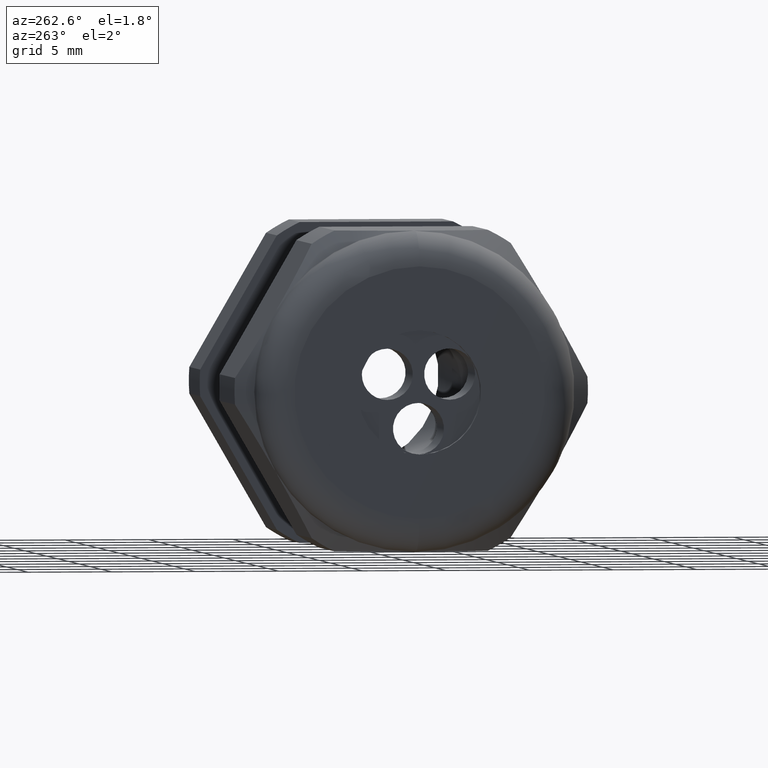
[diagram: clean part render]
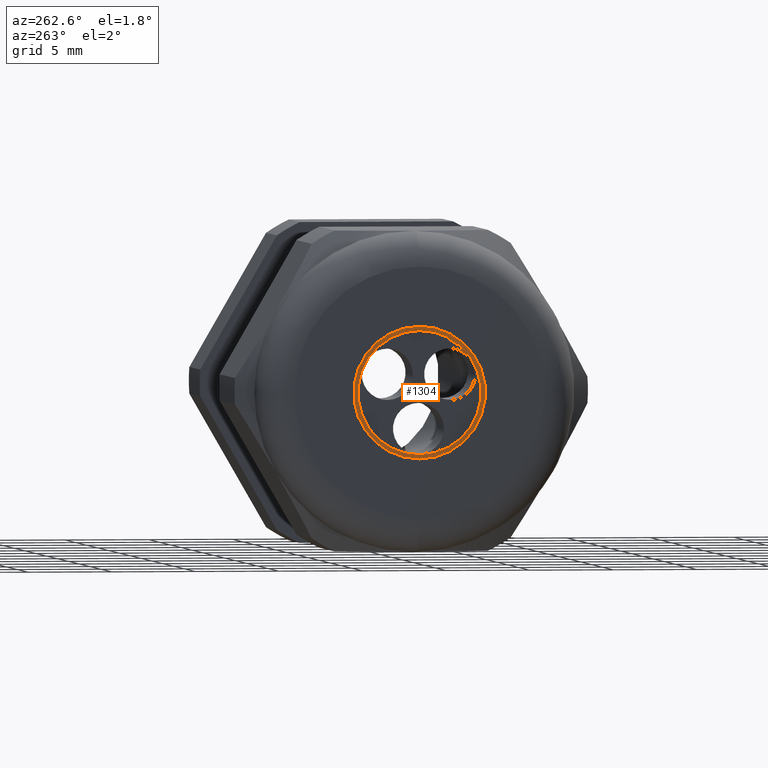
[diagram: same view with one face highlighted and labeled with its STEP entity id]
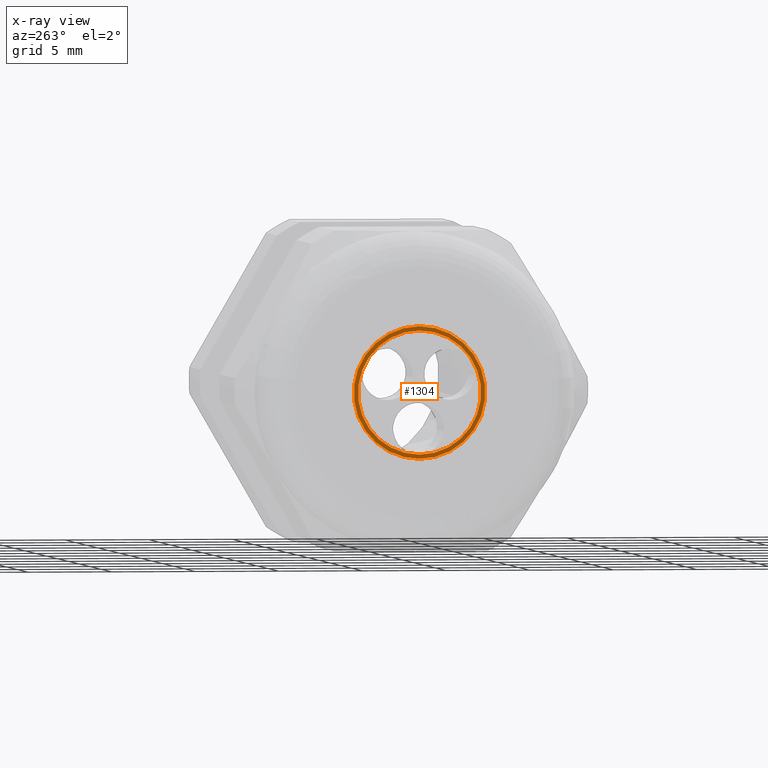
[diagram: x-ray of the same camera — body ghosted, the highlighted face saturated]
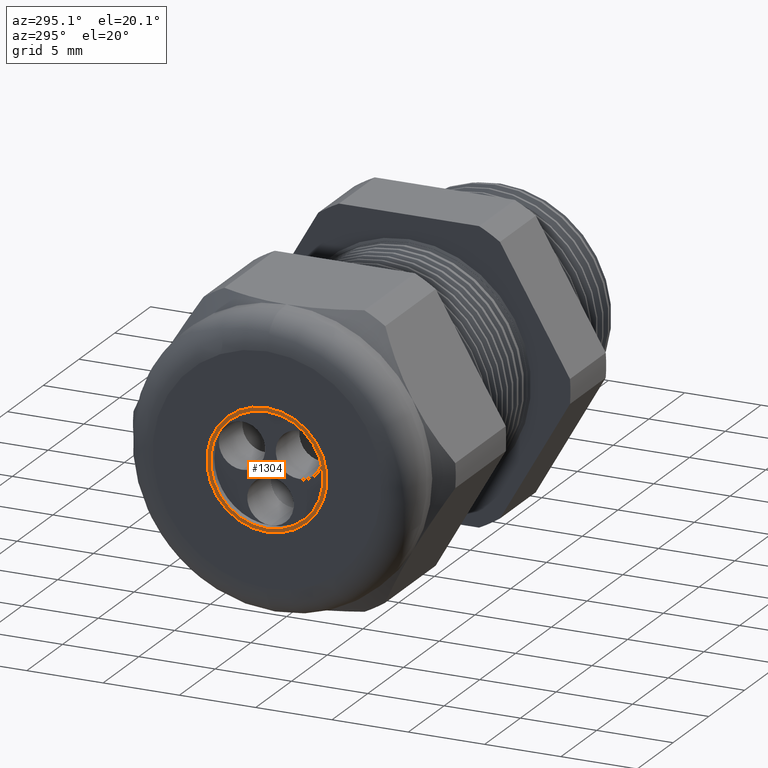
[diagram: same view with one face highlighted and labeled with its STEP entity id]
A machine part, auxiliary view. The second image highlights one B-rep face of the part: STEP entity #1304.
The next image is the same camera in x-ray: the body ghosted, the highlighted face saturated — about 0% of this face is hidden behind the body in this view.
A second angle (auxiliary view) of the same face is appended — the face is thin or edge-on in the first view.
In plain terms, the highlighted planar face has unit normal (-1, 0, 0).
Its self-contained STEP definition (entity closure, byte-faithful):
#1203 = EDGE_CURVE ( 'NONE', #1204, #1218, #3431, .T. ) ;
#1204 = VERTEX_POINT ( 'NONE', #3427 ) ;
#1214 = VERTEX_POINT ( 'NONE', #3409 ) ;
#1218 = VERTEX_POINT ( 'NONE', #3467 ) ;
#1229 = EDGE_LOOP ( 'NONE', ( #1299, #1301 ) ) ;
#1233 = EDGE_CURVE ( 'NONE', #1214, #1234, #3451, .T. ) ;
#1234 = VERTEX_POINT ( 'NONE', #3446 ) ;
#1244 = EDGE_LOOP ( 'NONE', ( #1245, #1246 ) ) ;
#1245 = ORIENTED_EDGE ( 'NONE', *, *, #1203, .T. ) ;
#1246 = ORIENTED_EDGE ( 'NONE', *, *, #1266, .T. ) ;
#1266 = EDGE_CURVE ( 'NONE', #1218, #1204, #3522, .T. ) ;
#1299 = ORIENTED_EDGE ( 'NONE', *, *, #1300, .F. ) ;
#1300 = EDGE_CURVE ( 'NONE', #1234, #1214, #3585, .T. ) ;
#1301 = ORIENTED_EDGE ( 'NONE', *, *, #1233, .F. ) ;
#1304 = ADVANCED_FACE ( 'NONE', ( #3580, #3579 ), #3578, .T. ) ;
#3409 = CARTESIAN_POINT ( 'NONE',  ( -1.289999999999999800, 1.775737858763661900E-017, -0.1449999999999999900 ) ) ;
#3427 = CARTESIAN_POINT ( 'NONE',  ( -1.289999999999999800, 0.0000000000000000000, 0.1550000000000000000 ) ) ;
#3428 = DIRECTION ( 'NONE',  ( 0.0000000000000000000, 0.0000000000000000000, 1.000000000000000000 ) ) ;
#3429 = DIRECTION ( 'NONE',  ( -1.000000000000000000, 0.0000000000000000000, 0.0000000000000000000 ) ) ;
#3430 = AXIS2_PLACEMENT_3D ( 'NONE', #3436, #3429, #3428 ) ;
#3431 = CIRCLE ( 'NONE', #3430, 0.1550000000000000000 ) ;
#3436 = CARTESIAN_POINT ( 'NONE',  ( -1.289999999999999800, 0.0000000000000000000, 0.0000000000000000000 ) ) ;
#3446 = CARTESIAN_POINT ( 'NONE',  ( -1.289999999999999800, 0.0000000000000000000, 0.1449999999999999900 ) ) ;
#3447 = DIRECTION ( 'NONE',  ( 0.0000000000000000000, 0.0000000000000000000, 1.000000000000000000 ) ) ;
#3448 = DIRECTION ( 'NONE',  ( -1.000000000000000000, 0.0000000000000000000, 0.0000000000000000000 ) ) ;
#3449 = CARTESIAN_POINT ( 'NONE',  ( -1.289999999999999800, 0.0000000000000000000, 0.0000000000000000000 ) ) ;
#3450 = AXIS2_PLACEMENT_3D ( 'NONE', #3449, #3448, #3447 ) ;
#3451 = CIRCLE ( 'NONE', #3450, 0.1449999999999999900 ) ;
#3467 = CARTESIAN_POINT ( 'NONE',  ( -1.289999999999999800, 1.898202538678397000E-017, -0.1550000000000000000 ) ) ;
#3518 = DIRECTION ( 'NONE',  ( 0.0000000000000000000, 0.0000000000000000000, 1.000000000000000000 ) ) ;
#3519 = DIRECTION ( 'NONE',  ( -1.000000000000000000, 0.0000000000000000000, 0.0000000000000000000 ) ) ;
#3520 = CARTESIAN_POINT ( 'NONE',  ( -1.289999999999999800, 0.0000000000000000000, 0.0000000000000000000 ) ) ;
#3521 = AXIS2_PLACEMENT_3D ( 'NONE', #3520, #3519, #3518 ) ;
#3522 = CIRCLE ( 'NONE', #3521, 0.1550000000000000000 ) ;
#3574 = DIRECTION ( 'NONE',  ( 0.0000000000000000000, 0.0000000000000000000, 1.000000000000000000 ) ) ;
#3575 = DIRECTION ( 'NONE',  ( -1.000000000000000000, 0.0000000000000000000, 0.0000000000000000000 ) ) ;
#3576 = CARTESIAN_POINT ( 'NONE',  ( -1.289999999999999800, 0.0000000000000000000, 0.0000000000000000000 ) ) ;
#3577 = AXIS2_PLACEMENT_3D ( 'NONE', #3576, #3575, #3574 ) ;
#3578 = PLANE ( 'NONE',  #3577 ) ;
#3579 = FACE_OUTER_BOUND ( 'NONE', #1244, .T. ) ;
#3580 = FACE_BOUND ( 'NONE', #1229, .T. ) ;
#3581 = DIRECTION ( 'NONE',  ( 0.0000000000000000000, 0.0000000000000000000, 1.000000000000000000 ) ) ;
#3582 = DIRECTION ( 'NONE',  ( -1.000000000000000000, 0.0000000000000000000, 0.0000000000000000000 ) ) ;
#3583 = CARTESIAN_POINT ( 'NONE',  ( -1.289999999999999800, 0.0000000000000000000, 0.0000000000000000000 ) ) ;
#3584 = AXIS2_PLACEMENT_3D ( 'NONE', #3583, #3582, #3581 ) ;
#3585 = CIRCLE ( 'NONE', #3584, 0.1449999999999999900 ) ;